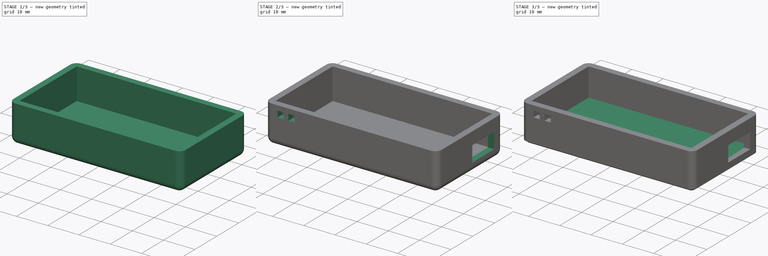
[diagram: build sequence overview — one tinted view per stage of 3, left to right]
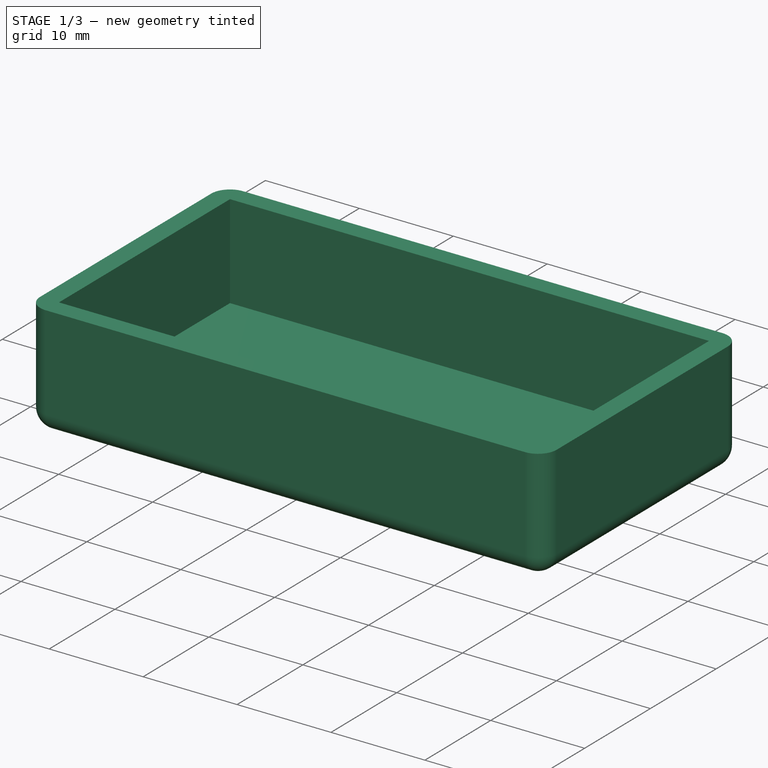
[diagram: stage 1 of 3 — iso view after this stage's code; geometry added in this stage tinted green]
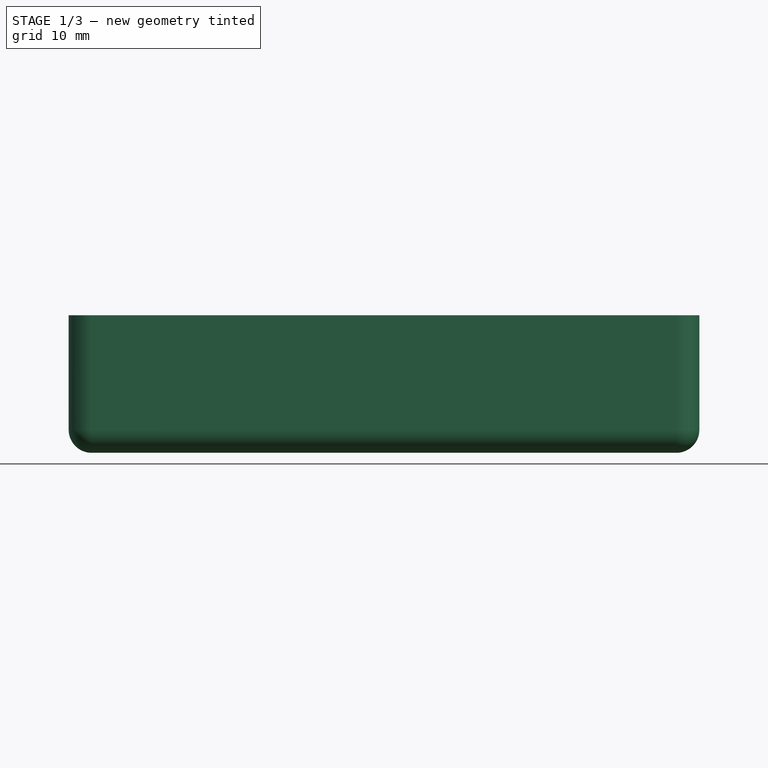
[diagram: stage 1 of 3 — front view after this stage's code; geometry added in this stage tinted green]
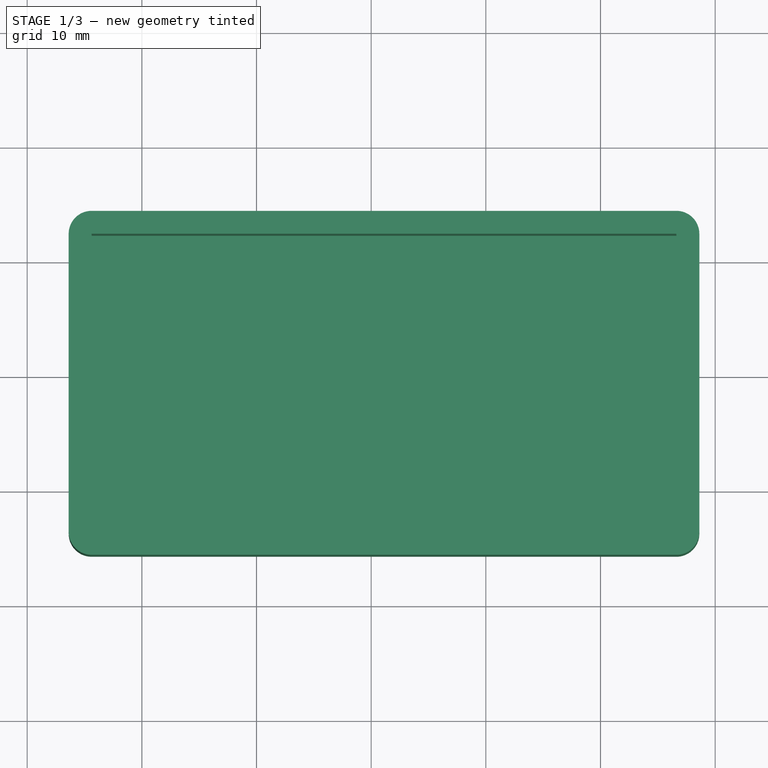
[diagram: stage 1 of 3 — top view after this stage's code; geometry added in this stage tinted green]
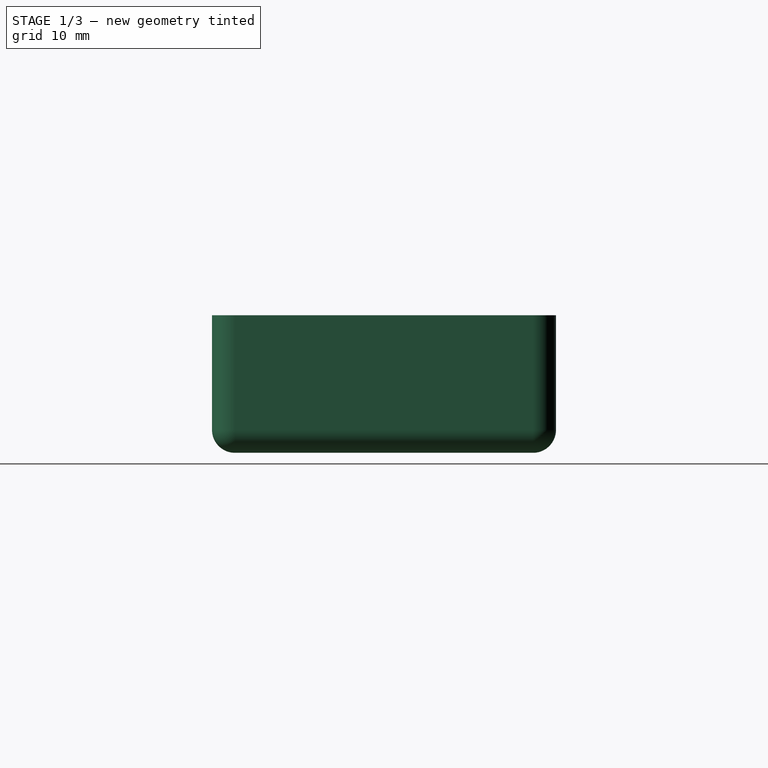
[diagram: stage 1 of 3 — right view after this stage's code; geometry added in this stage tinted green]
FCSTD DOCUMENT  (FreeCAD 0.20R29410 (Git))
Label: esp32-case
License: All rights reserved
LicenseURL: http://en.wikipedia.org/wiki/All_rights_reserved
objects: Sketcher::SketchObject×3, PartDesign::Pad×2, PartDesign::Pocket×2, PartDesign::Body×2, PartDesign::Thickness×1, PartDesign::ShapeBinder×1, PartDesign::Chamfer×1
note: 18 computed .brp shape members not serialized (recipe doc carries the construction recipe); baked Part::Feature solids carry a one-line shape summary decoded from their .brp

FEATURE [Sketcher::SketchObject] Sketch
  FullyConstrained = false
  MapMode = 5
  Support = -> [XY_Plane]
  sketch-geometry (4):
    g0: LineSegment StartX=-24.3814 StartY=12.3112 StartZ=0 EndX=26.6186 EndY=12.3112 EndZ=0
    g1: LineSegment StartX=26.6186 StartY=12.3112 StartZ=0 EndX=26.6186 EndY=-13.6888 EndZ=0
    g2: LineSegment StartX=26.6186 StartY=-13.6888 StartZ=0 EndX=-24.3814 EndY=-13.6888 EndZ=0
    g3: LineSegment StartX=-24.3814 StartY=-13.6888 StartZ=0 EndX=-24.3814 EndY=12.3112 EndZ=0
  constraints (10):
    c: Coincident(g0,g1)
    c: Coincident(g1,g2)
    c: Coincident(g2,g3)
    c: Coincident(g3,g0)
    c: Horizontal(g0)
    c: Horizontal(g2)
    c: Vertical(g1)
    c: Vertical(g3)
    c: DistanceX(g0,g0) = 51
    c: DistanceY(g2,g0) = 26
FEATURE [PartDesign::Pad] Pad
  Direction = (0,0,1)
  Length = 10
  Length2 = 10
  Profile = -> Sketch
  ReferenceAxis = -> Sketch [N_Axis]
  Type = 0
FEATURE [PartDesign::Thickness] Thickness
  Base = -> Pad [Face6]
  BaseFeature = -> Pad
  Intersection = false
  Join = 0
  Mode = 0
  SupportTransform = false
  Value = 2
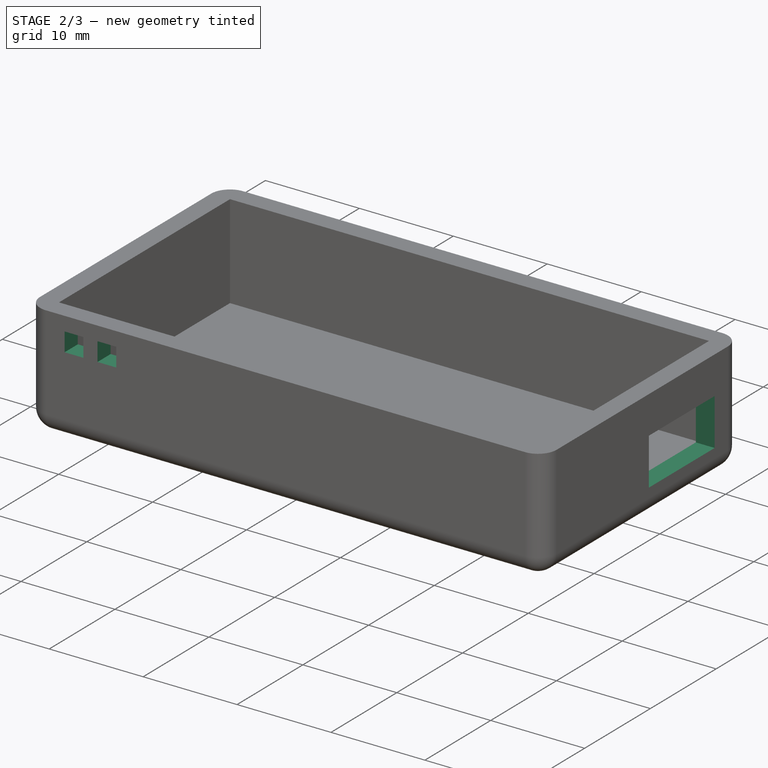
[diagram: stage 2 of 3 — iso view after this stage's code; geometry added in this stage tinted green]
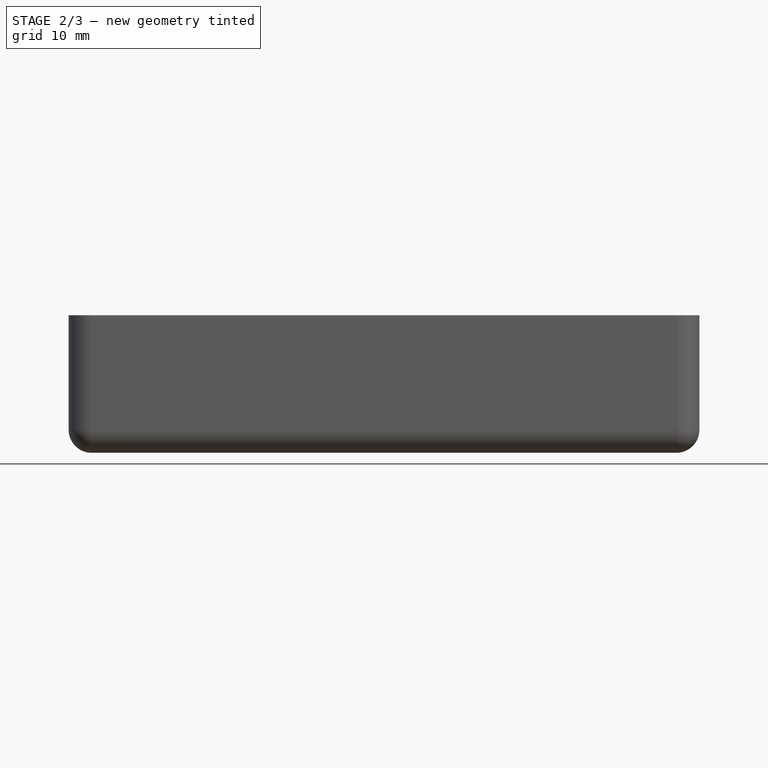
[diagram: stage 2 of 3 — front view after this stage's code; geometry added in this stage tinted green]
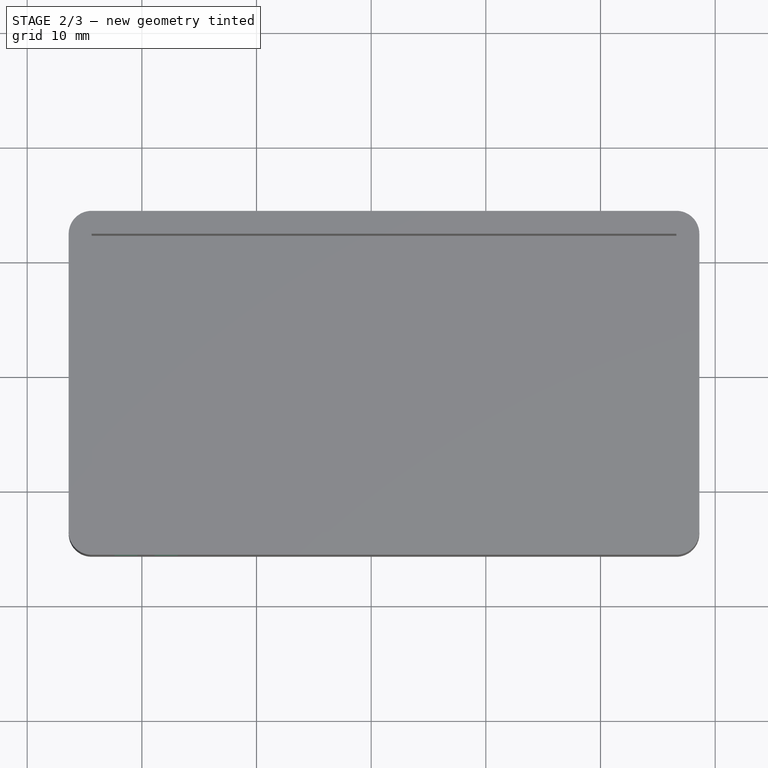
[diagram: stage 2 of 3 — top view after this stage's code; geometry added in this stage tinted green]
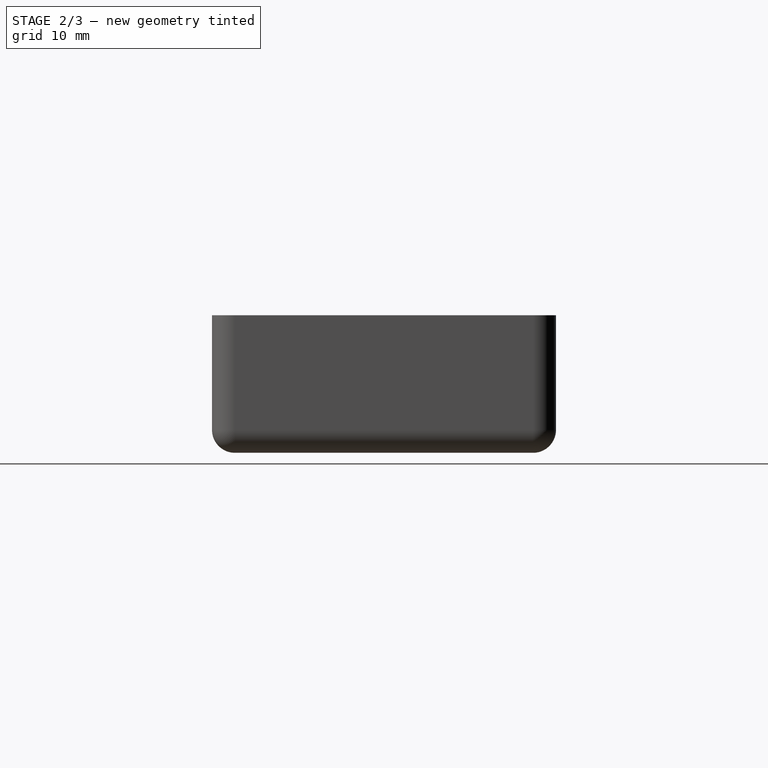
[diagram: stage 2 of 3 — right view after this stage's code; geometry added in this stage tinted green]
FEATURE [Sketcher::SketchObject] Sketch001
  ExternalGeometry = -> [Thickness]
  FullyConstrained = true
  MapMode = 5
  Placement = pos=(28.6186,0,0) rot=(0.57735,0.57735,0.57735;2.0944rad)
  Support = -> [Thickness]
  sketch-geometry (4):
    g0: LineSegment StartX=0.311198 StartY=6 StartZ=0 EndX=10.3112 EndY=6 EndZ=0
    g1: LineSegment StartX=10.3112 StartY=6 StartZ=0 EndX=10.3112 EndY=1 EndZ=0
    g2: LineSegment StartX=10.3112 StartY=1 StartZ=0 EndX=0.311198 EndY=1 EndZ=0
    g3: LineSegment StartX=0.311198 StartY=1 StartZ=0 EndX=0.311198 EndY=6 EndZ=0
  constraints (12):
    c: Coincident(g0,g1)
    c: Coincident(g1,g2)
    c: Coincident(g2,g3)
    c: Coincident(g3,g0)
    c: Horizontal(g0)
    c: Horizontal(g2)
    c: Vertical(g1)
    c: Vertical(g3)
    c: DistanceY(g3,g3) = 5
    c: DistanceX(g0,g0) = 10
    c: DistanceX(g1,g-6) = 2
    c: DistanceY(g-6,g1) = 1
FEATURE [PartDesign::Pocket] Pocket
  BaseFeature = -> Thickness
  Direction = (-1,0,0)
  Length = 5
  Length2 = 5
  Profile = -> Sketch001
  ReferenceAxis = -> Sketch001 [N_Axis]
  Type = 2
FEATURE [PartDesign::Body] Body001  label="Cap"
  Group = -> [ShapeBinder,Pad001,Chamfer]
  Origin = -> Origin001
  Placement = pos=(0,0,15) rot=(0,0,1;0rad)
  Tip = -> Chamfer
FEATURE [Sketcher::SketchObject] Sketch002
  ExternalGeometry = -> [Pocket]
  FullyConstrained = true
  MapMode = 5
  Placement = pos=(0,-15.6888,0) rot=(1,0,0;1.5708rad)
  Support = -> [Pocket]
  sketch-geometry (8):
    g0: LineSegment StartX=-18.8814 StartY=8.5 StartZ=0 EndX=-16.8814 EndY=8.5 EndZ=0
    g1: LineSegment StartX=-16.8814 StartY=8.5 StartZ=0 EndX=-16.8814 EndY=6.5 EndZ=0
    g2: LineSegment StartX=-16.8814 StartY=6.5 StartZ=0 EndX=-18.8814 EndY=6.5 EndZ=0
    g3: LineSegment StartX=-18.8814 StartY=6.5 StartZ=0 EndX=-18.8814 EndY=8.5 EndZ=0
    g4: LineSegment StartX=-22.3814 StartY=8.5 StartZ=0 EndX=-20.3814 EndY=8.5 EndZ=0
    g5: LineSegment StartX=-20.3814 StartY=8.5 StartZ=0 EndX=-20.3814 EndY=6.5 EndZ=0
    g6: LineSegment StartX=-20.3814 StartY=6.5 StartZ=0 EndX=-22.3814 EndY=6.5 EndZ=0
    g7: LineSegment StartX=-22.3814 StartY=6.5 StartZ=0 EndX=-22.3814 EndY=8.5 EndZ=0
  constraints (24):
    c: Coincident(g0,g1)
    c: Coincident(g1,g2)
    c: Coincident(g2,g3)
    c: Coincident(g3,g0)
    c: Horizontal(g0)
    c: Horizontal(g2)
    c: Vertical(g1)
    c: Vertical(g3)
    c: DistanceX(g0,g0) = 2
    c: DistanceY(g1,g1) = 2
    c: Coincident(g4,g5)
    c: Coincident(g5,g6)
    c: Coincident(g6,g7)
    c: Coincident(g7,g4)
    c: Horizontal(g4)
    c: Horizontal(g6)
    c: Vertical(g5)
    c: Vertical(g7)
    c: DistanceX(g4,g4) = 2
    c: DistanceY(g7,g7) = 2
    c: DistanceY(g0,g4) = 0
    c: DistanceX(g5,g2) = 1.5
    c: DistanceX(g-3,g4) = 2
    c: DistanceY(g4,g-3) = 1.5
FEATURE [PartDesign::Pocket] Pocket001
  BaseFeature = -> Pocket
  Direction = (0,1,-2e-16)
  Length = 5
  Length2 = 5
  Profile = -> Sketch002
  ReferenceAxis = -> Sketch002 [N_Axis]
  Type = 2
FEATURE [PartDesign::Body] Body  label="Case"
  Group = -> [Sketch,Pad,Thickness,Sketch001,Pocket,Sketch002,Pocket001]
  Origin = -> Origin
  Tip = -> Pocket001
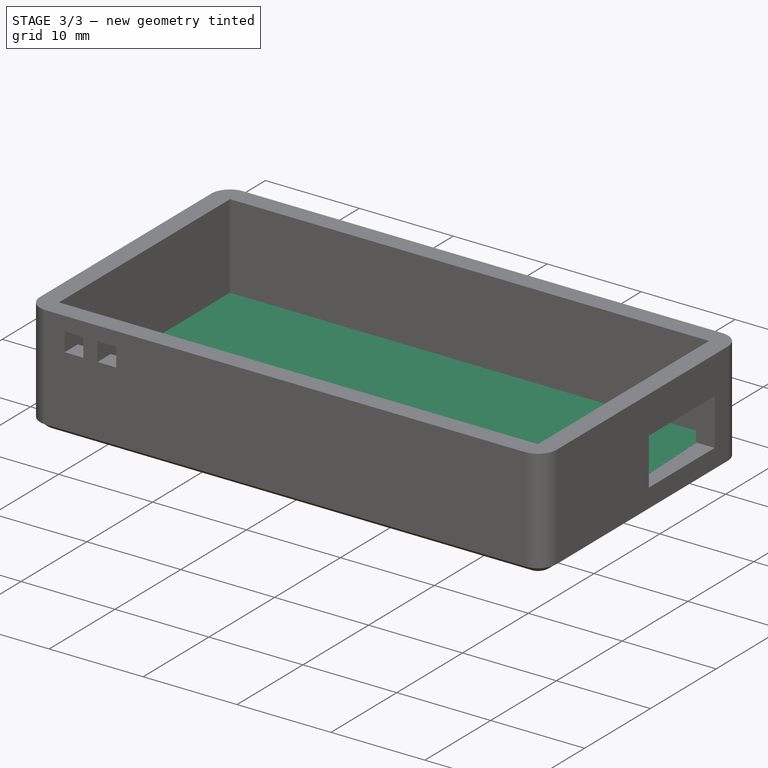
[diagram: stage 3 of 3 — iso view after this stage's code; geometry added in this stage tinted green]
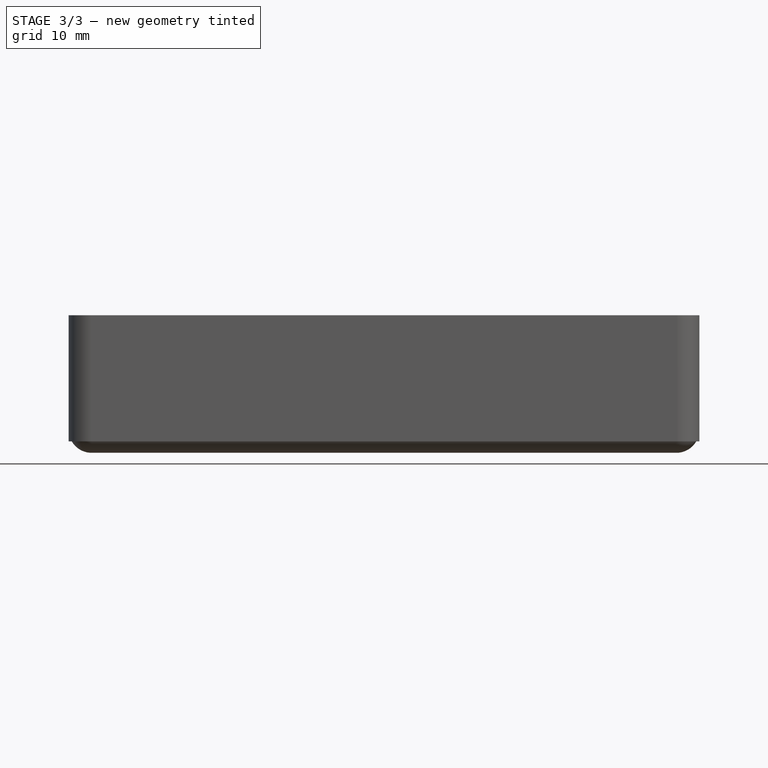
[diagram: stage 3 of 3 — front view after this stage's code; geometry added in this stage tinted green]
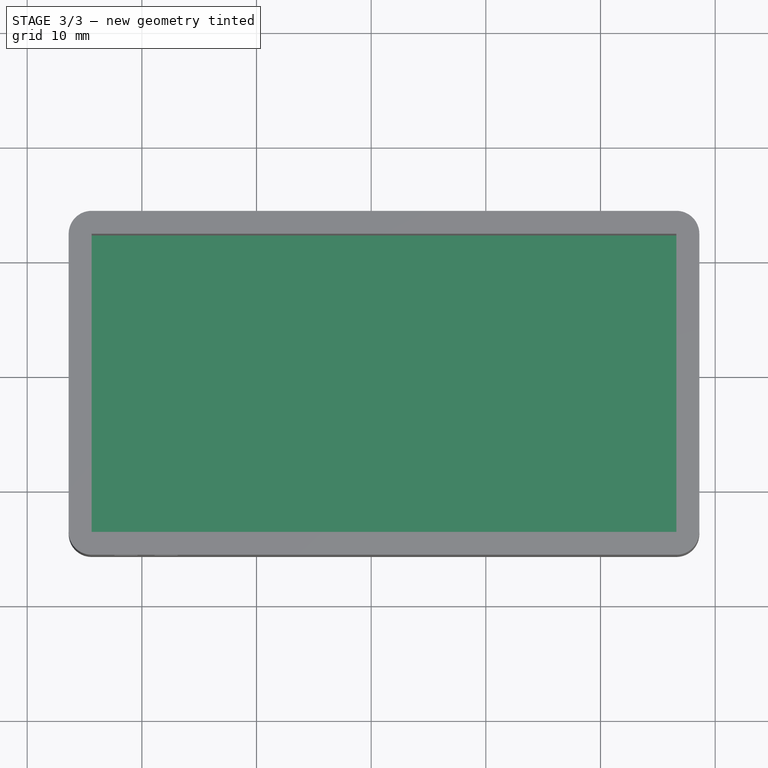
[diagram: stage 3 of 3 — top view after this stage's code; geometry added in this stage tinted green]
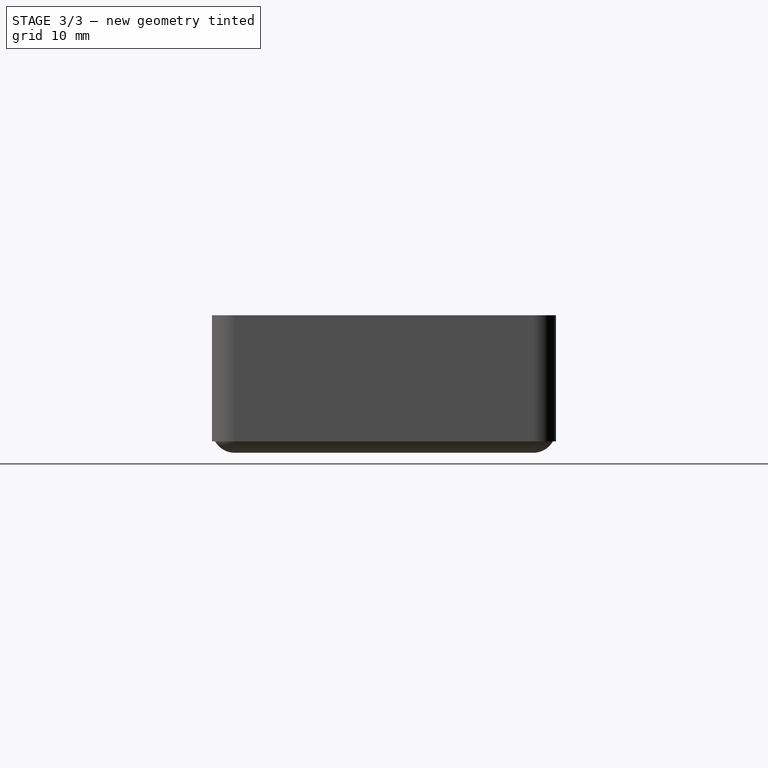
[diagram: stage 3 of 3 — right view after this stage's code; geometry added in this stage tinted green]
FEATURE [PartDesign::ShapeBinder] ShapeBinder
  Support = -> [Pocket]
  TraceSupport = false
FEATURE [PartDesign::Pad] Pad001
  Direction = (0,0,1)
  Length = 2
  Length2 = 10
  Midplane = true
  Profile = -> ShapeBinder
  Type = 0
FEATURE [PartDesign::Chamfer] Chamfer
  Angle = 45
  Base = -> Pad001 [Face10]
  BaseFeature = -> Pad001
  ChamferType = 0
  FlipDirection = false
  Size = 1
  Size2 = 1
  SupportTransform = false
  UseAllEdges = false
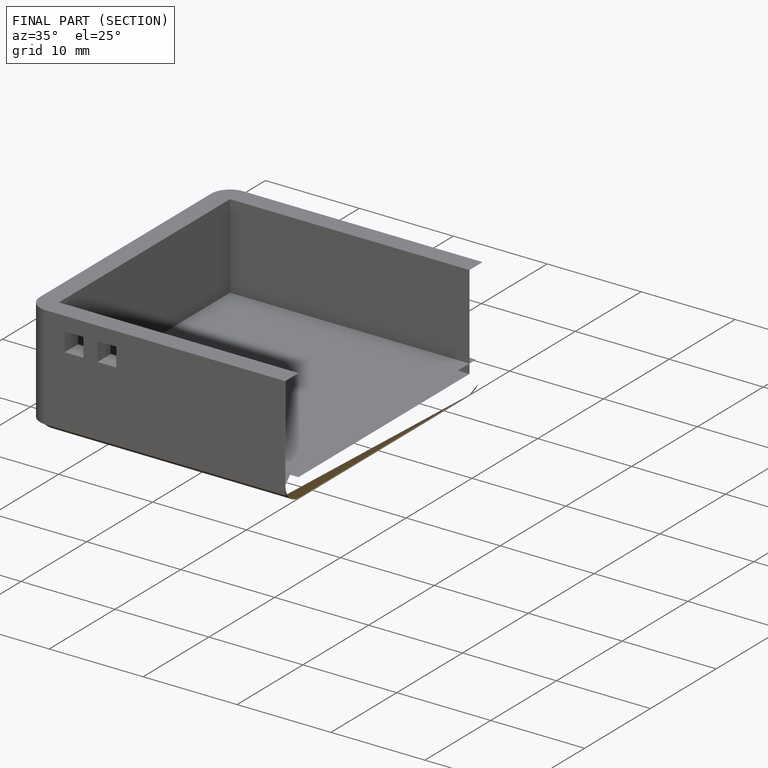
[diagram: finished part — half-section view (interior)]
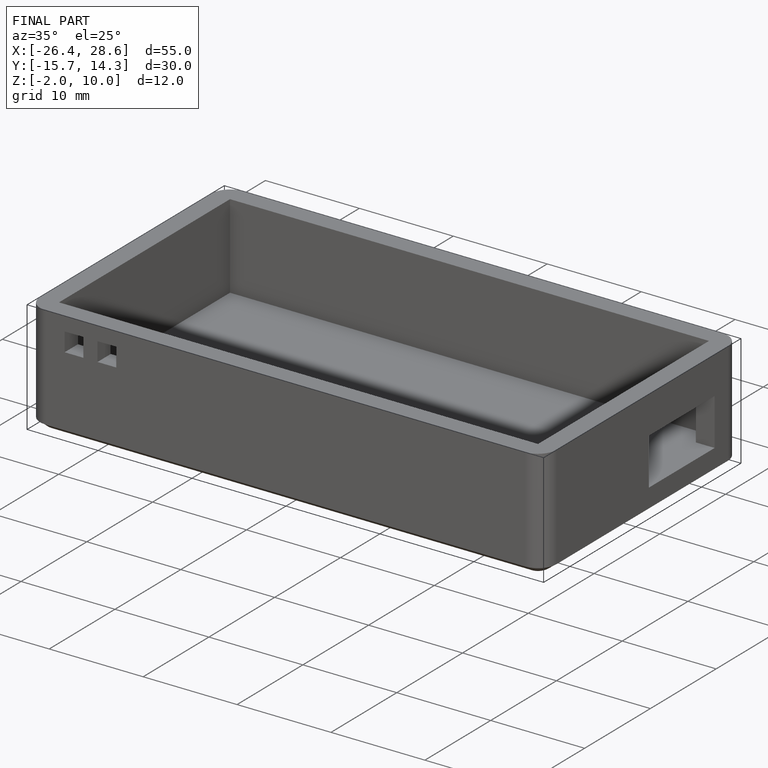
[diagram: finished part — iso view with bounding-box wireframe]
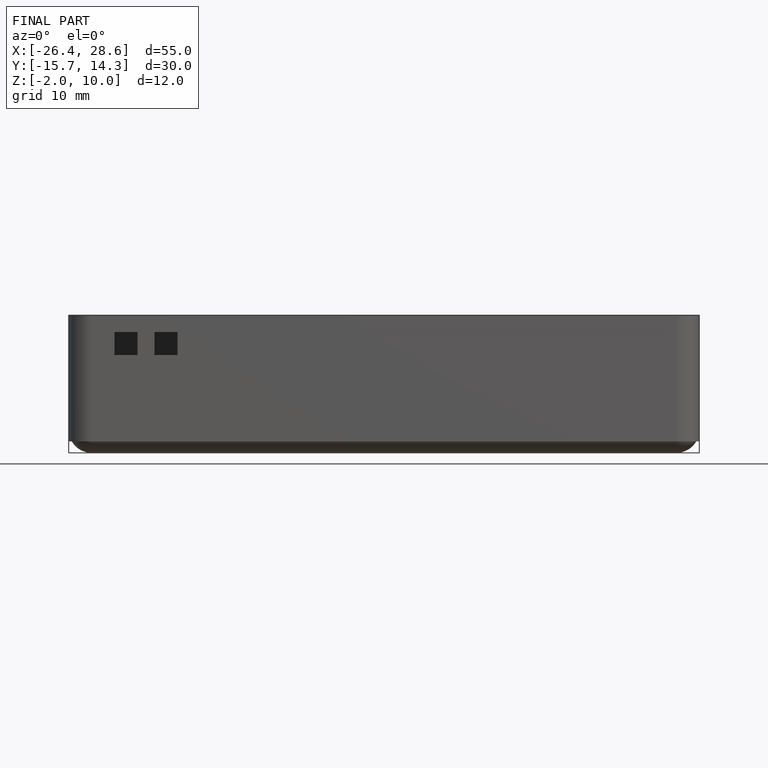
[diagram: finished part — front view with bounding-box wireframe]
